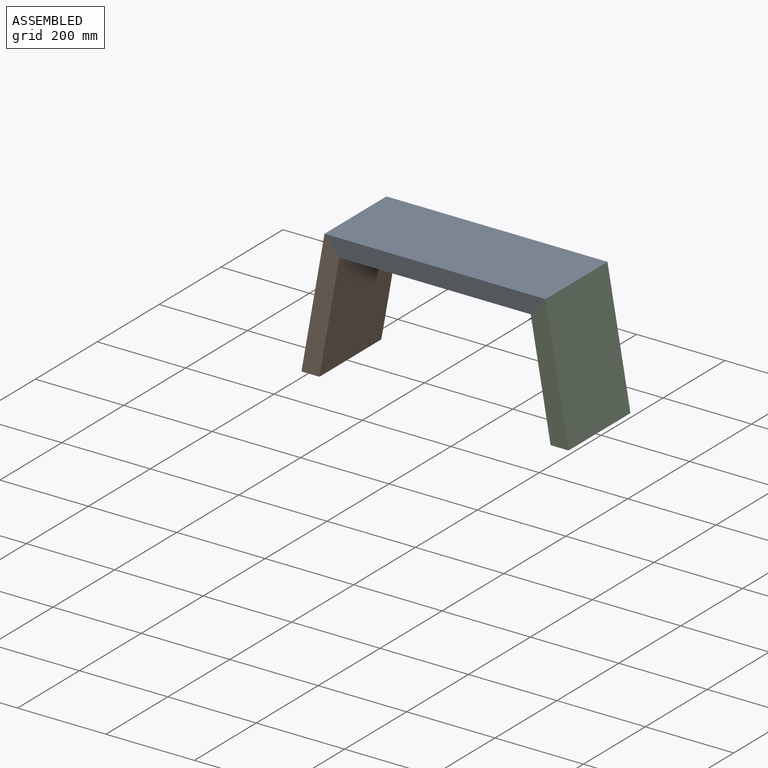
[diagram: assembled view]
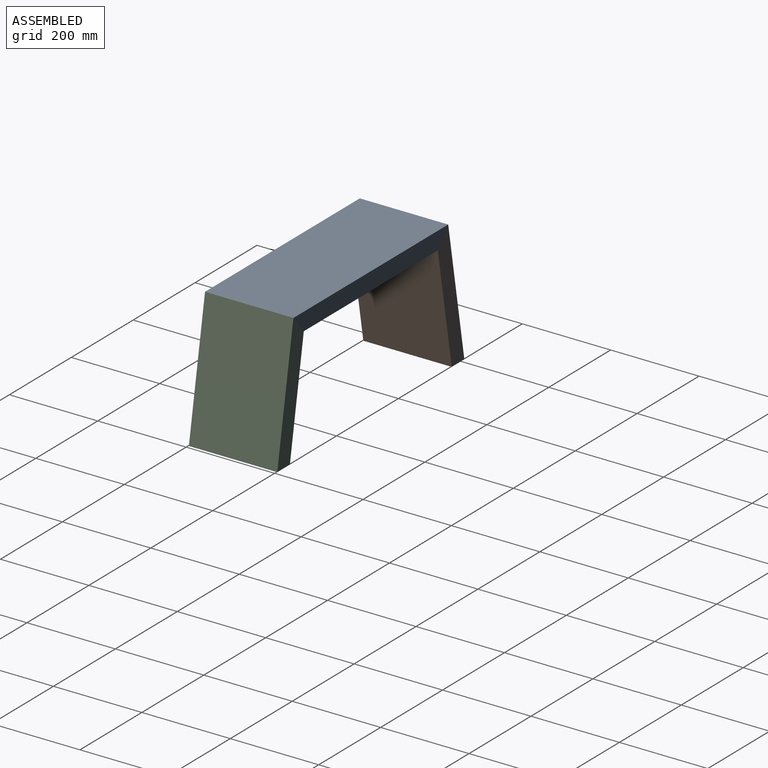
[diagram: assembled view, second angle]
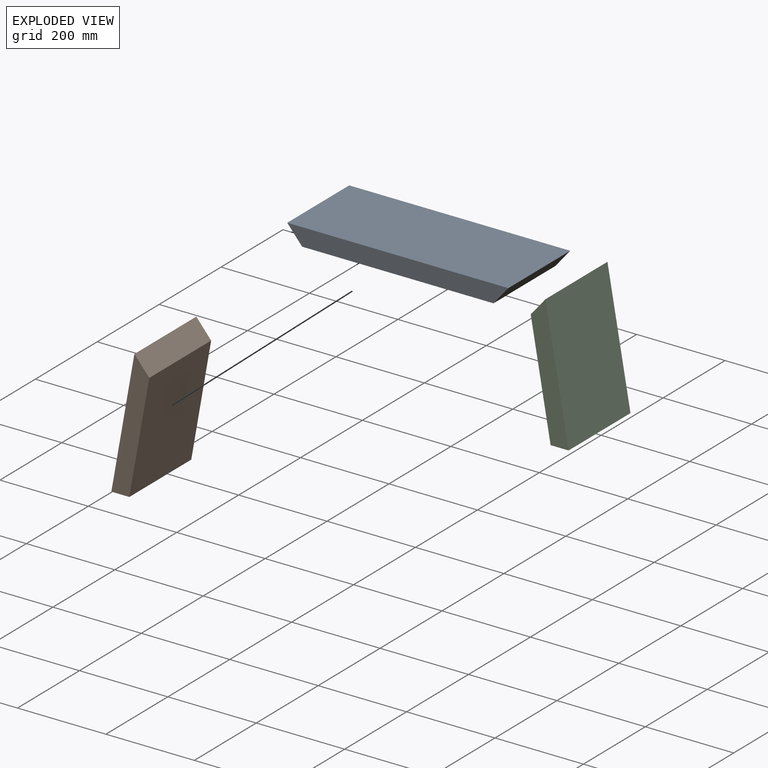
[diagram: exploded view]
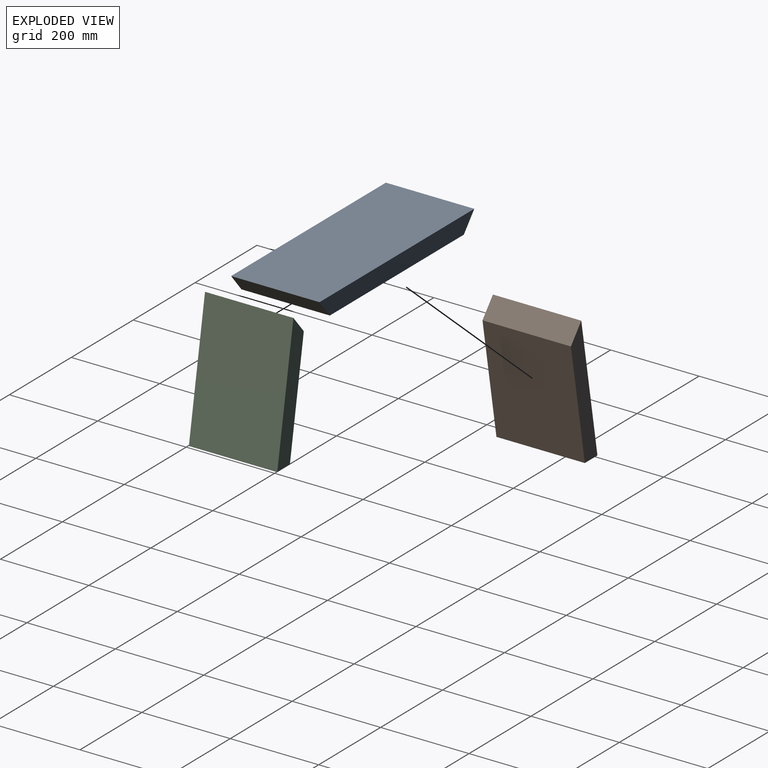
[diagram: exploded view, second angle]
ASSEMBLY  parts=3 mates=2
PART A: 6 faces, bbox 40x200x500 mm
  f0: plane 432.87x200mm, normal (1,0,0), area 86574.4mm2, adj f1,f2,f4,f5
  f1: plane 500x40mm, normal (0,-1,0), area 18657.4mm2, adj f0,f3,f4,f5
  f2: plane 500x40mm, normal (0,1,0), area 18657.4mm2, adj f0,f3,f4,f5
  f3: plane 500x200mm, normal (-1,0,0), area 100000mm2, adj f1,f2,f4,f5
  f4: plane 200x40mm, normal (0.64,0,-0.77), area 10443.3mm2, adj f0,f1,f2,f3
  f5: plane 200x40mm, normal (0.64,0,0.77), area 10443.3mm2, adj f0,f1,f2,f3
PART B: 6 faces, bbox 40x200x300 mm
  f0: plane 259.38x200mm, normal (1,0,0), area 51876.6mm2, adj f1,f2,f4,f5
  f1: plane 300x40mm, normal (0,-1,0), area 11187.7mm2, adj f0,f3,f4,f5
  f2: plane 300x40mm, normal (0,1,0), area 11187.7mm2, adj f0,f3,f4,f5
  f3: plane 300x200mm, normal (-1,0,0), area 60000mm2, adj f1,f2,f4,f5
  f4: plane 200x40mm, normal (0.17,0,-0.98), area 8123.4mm2, adj f0,f1,f2,f3
  f5: plane 200x40mm, normal (0.64,0,0.77), area 10443.3mm2, adj f0,f1,f2,f3
PART C: same geometry as B
PLACE A rot(axis=(0,1,0),90deg) t=(-506.49,58.28,218.41)mm
PLACE B rot(axis=(0,1,0),10deg) t=(-560.75,58.28,-78.85)mm
PLACE C rot(axis=(0.09,0,-1),180deg) t=(47.77,-141.72,-78.85)mm
MATE slider C.f5 <-> A.f5  axis (-0.77,0,0.64) through (-6.49,-141.72,216.21)mm
MATE slider B.f5 <-> A.f4  axis (0.77,0,0.64) through (-506.49,58.28,216.21)mm
